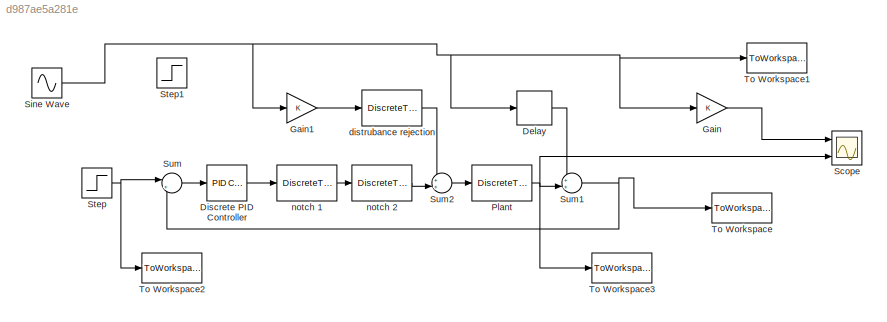
MODEL slx_d987ae5a281e
KIND model
CONFIG AbsTol = auto
CONFIG FixedStep = auto
CONFIG MaxStep = auto
CONFIG MinStep = auto
CONFIG RelTol = 1e-3
CONFIG SampleTimeConstraint = Unconstrained
CONFIG Solver = VariableStepAuto
CONFIG SolverMode = Auto
CONFIG SolverName = VariableStepAuto
CONFIG StartTime = 0.0
CONFIG StopTime = 1
BLOCK [Delay] Delay
  DelayLength = 1
  InputPortMap = u0
  Ports = [1, 1]
BLOCK [Reference] Discrete PID Controller  REF=simulink/Continuous/PID Controller
  Ports = [1, 1]
  SourceBlock = simulink/Continuous/PID Controller
  SourceType = PID 1dof
BLOCK [Gain] Gain
  OutDataTypeStr = Inherit: Inherit via internal rule
  ParamDataTypeStr = Inherit: Inherit via internal rule
  SaturateOnIntegerOverflow = off
BLOCK [Gain] Gain1
  OutDataTypeStr = Inherit: Inherit via internal rule
  ParamDataTypeStr = Inherit: Inherit via internal rule
  SaturateOnIntegerOverflow = off
BLOCK [DiscreteTransferFcn] Plant
  Denominator = [1 -3.555 5.045 -3.418 0.9298]
  InputPortMap = u0
  Numerator = [0.1263 1.34 1.32 0.1209]
  Ports = [1, 1]
  SampleTime = 10^-4
BLOCK [Scope] Scope
  NumInputPorts = 3
  Ports = [3]
  ScopeSpecificationString = Simulink.scopes.TimeScopeBlockCfg('CurrentConfiguration', extmgr.ConfigurationSet(extmgr.Configuration('Core','General UI',true),extmgr.Configuration('Core','Source UI',true),extmgr.Configuration('Sources','WiredSimulink',true),extmgr.Configuration('Visuals','Time Domain',true,'SerializedDisplays',{struct('MinYLimReal','-0.24871','MaxYLimReal','1.23839','YLabelReal','','MinYLimMag','0.00000','MaxY...<+1444ch>
BLOCK [Sin] Sine Wave
  Amplitude = 0.1
  Frequency = 5000
  Ports = [0, 1]
  SampleTime = 10^(-4)
BLOCK [Step] Step
  SampleTime = 10^-4
  Time = 0
BLOCK [Step] Step1
  After = 0.00001
  SampleTime = 10^-4
  Time = 0
BLOCK [Sum] Sum
  IconShape = round
  InputSameDT = off
  Inputs = |+-
  OutDataTypeStr = Inherit: Inherit via internal rule
  Ports = [2, 1]
  SaturateOnIntegerOverflow = off
BLOCK [Sum] Sum1
  IconShape = round
  InputSameDT = off
  Inputs = ++|
  OutDataTypeStr = Inherit: Inherit via internal rule
  Ports = [2, 1]
  SaturateOnIntegerOverflow = off
BLOCK [Sum] Sum2
  IconShape = round
  InputSameDT = off
  Inputs = ++|
  OutDataTypeStr = Inherit: Inherit via internal rule
  Ports = [2, 1]
  SaturateOnIntegerOverflow = off
BLOCK [ToWorkspace] To Workspace
  FixptAsFi = on
  MaxDataPoints = inf
  Ports = [1]
  SampleTime = -1
  Save2DSignal = 3-D array (concatenate along third dimension)
  SaveFormat = Timeseries
  VariableName = response
BLOCK [ToWorkspace] To Workspace1
  FixptAsFi = on
  MaxDataPoints = inf
  Ports = [1]
  SampleTime = -1
  Save2DSignal = 3-D array (concatenate along third dimension)
  SaveFormat = Timeseries
  VariableName = disturbance
BLOCK [ToWorkspace] To Workspace2
  FixptAsFi = on
  MaxDataPoints = inf
  Ports = [1]
  SampleTime = -1
  Save2DSignal = 3-D array (concatenate along third dimension)
  SaveFormat = Timeseries
  VariableName = input
BLOCK [ToWorkspace] To Workspace3
  FixptAsFi = on
  MaxDataPoints = inf
  Ports = [1]
  SampleTime = -1
  Save2DSignal = 3-D array (concatenate along third dimension)
  SaveFormat = Timeseries
  VariableName = invert_dist
BLOCK [DiscreteTransferFcn] distrubance rejection
  Denominator = den4
  InputPortMap = u0
  Numerator = num4
  Ports = [1, 1]
  SampleTime = 10^-4
BLOCK [DiscreteTransferFcn] notch 1
  Denominator = [1 -1.877 0.8819]
  InputPortMap = u0
  Numerator = [1 -1.996 0.9995]
  Ports = [1, 1]
  SampleTime = 10^-4
BLOCK [DiscreteTransferFcn] notch 2
  Denominator = [1 -0.9397 0.1518]
  InputPortMap = u0
  Numerator = [1 -1.612 0.9963]
  Ports = [1, 1]
  SampleTime = 10^-4
LINE Delay:1 -> Sum1:1
LINE Discrete PID Controller:1 -> notch 1:1
LINE Gain1:1 -> distrubance rejection:1
LINE Gain:1 -> Scope:1
NET Plant:1 -> Scope:3, Sum1:2, To Workspace3:1
NET Sine Wave:1 -> Delay:1, Gain1:1, Gain:1, To Workspace1:1
NET Step:1 -> Sum:1, To Workspace2:1
NET Sum1:1 -> Sum:2, To Workspace:1
LINE Sum2:1 -> Plant:1
LINE Sum:1 -> Discrete PID Controller:1
LINE distrubance rejection:1 -> Sum2:1
LINE notch 1:1 -> notch 2:1
LINE notch 2:1 -> Sum2:2
note: NET lines group one-source signal fan-out (src -> all destinations, sorted); 1:1 wires keep LINE
